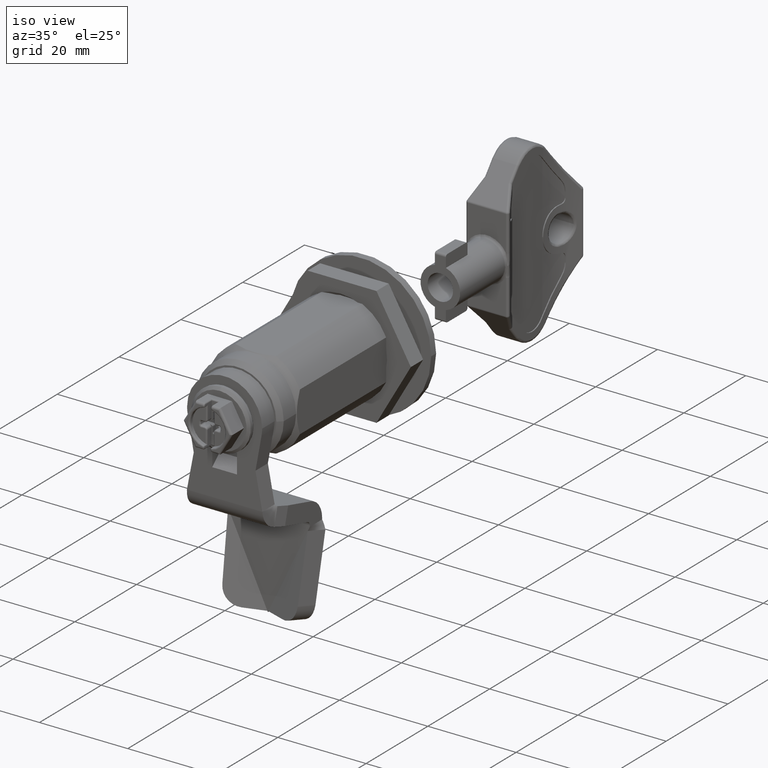
[diagram: clean part render]
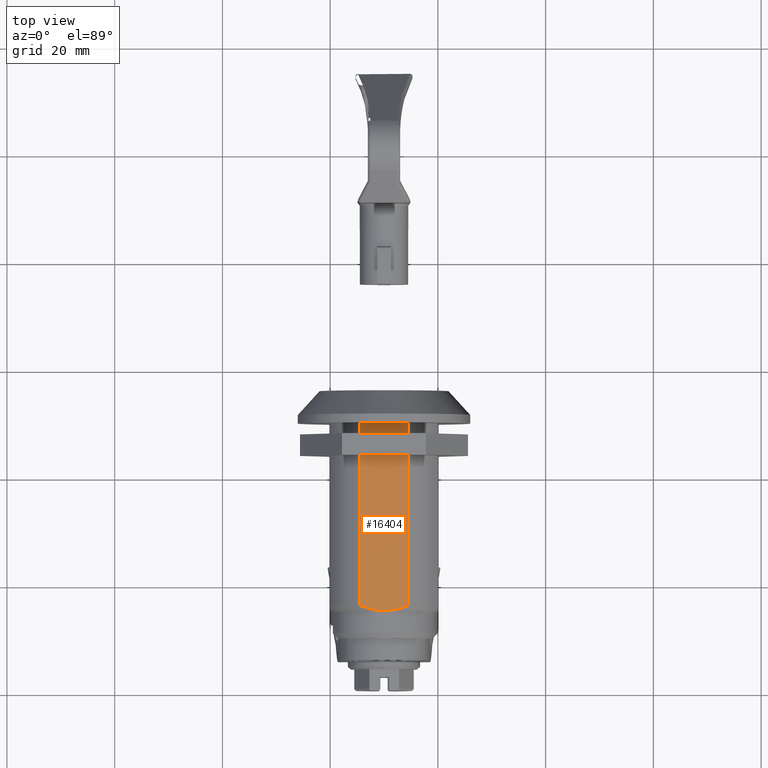
[diagram: tour spotlight — one face highlighted and labeled with its STEP entity id]
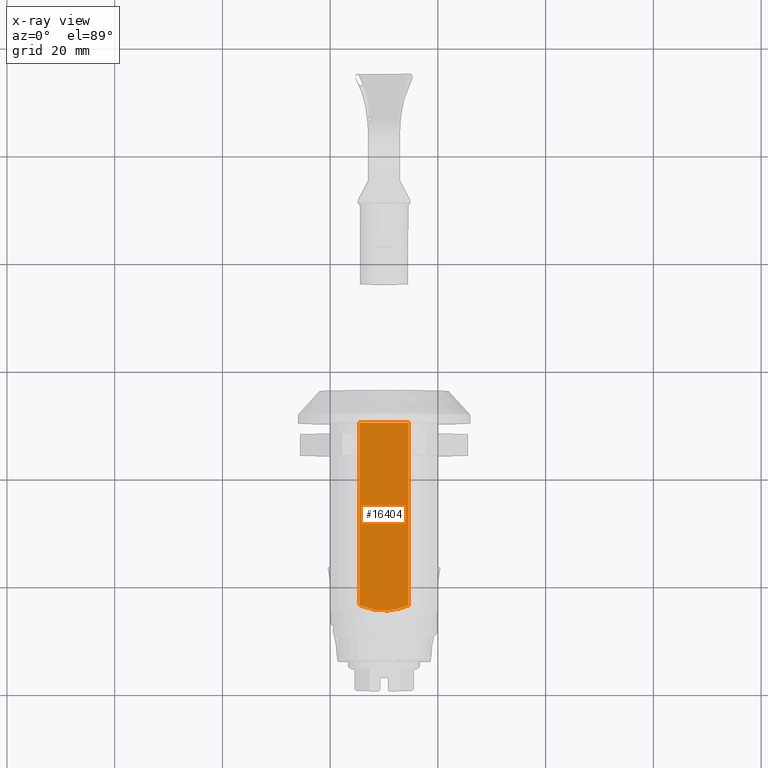
[diagram: x-ray of the same camera — body ghosted, this tour face saturated]
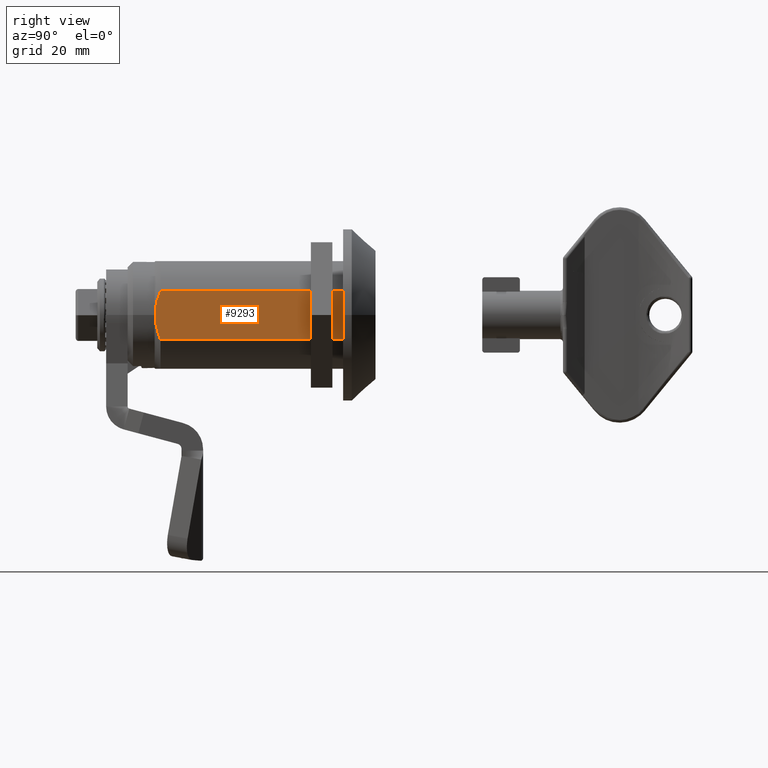
[diagram: tour spotlight — one face highlighted and labeled with its STEP entity id]
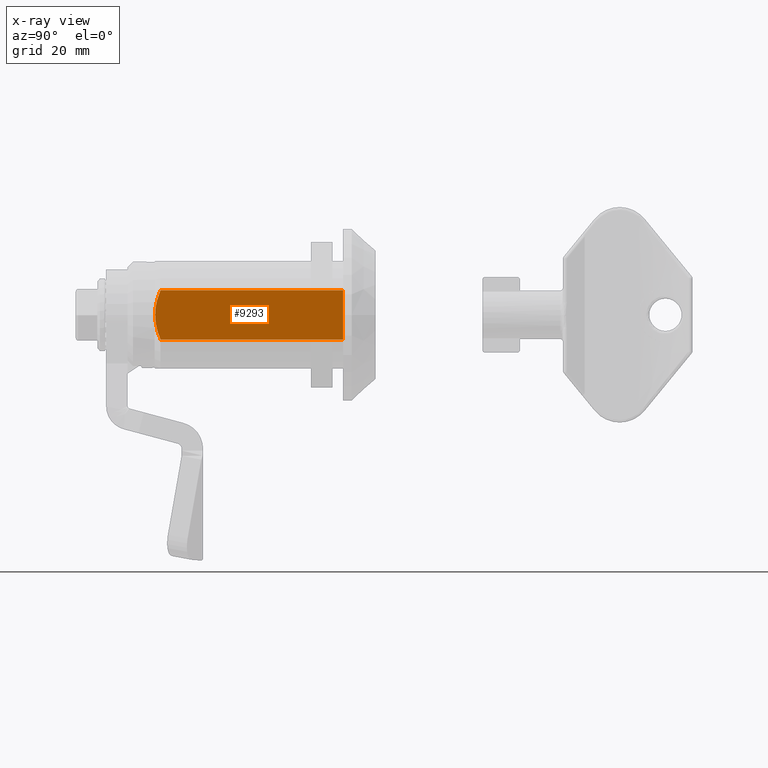
[diagram: x-ray of the same camera — body ghosted, this tour face saturated]
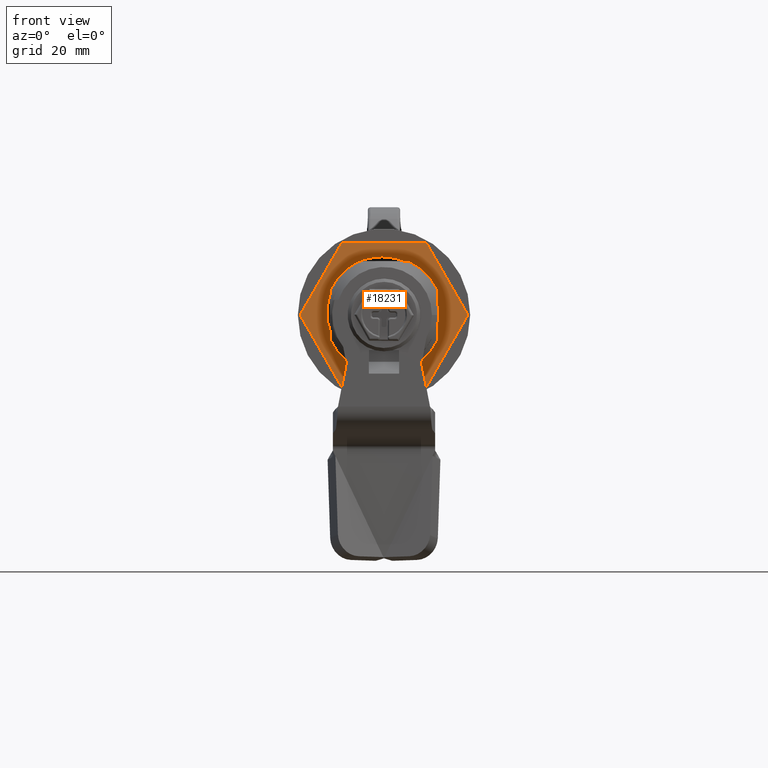
[diagram: tour spotlight — one face highlighted and labeled with its STEP entity id]
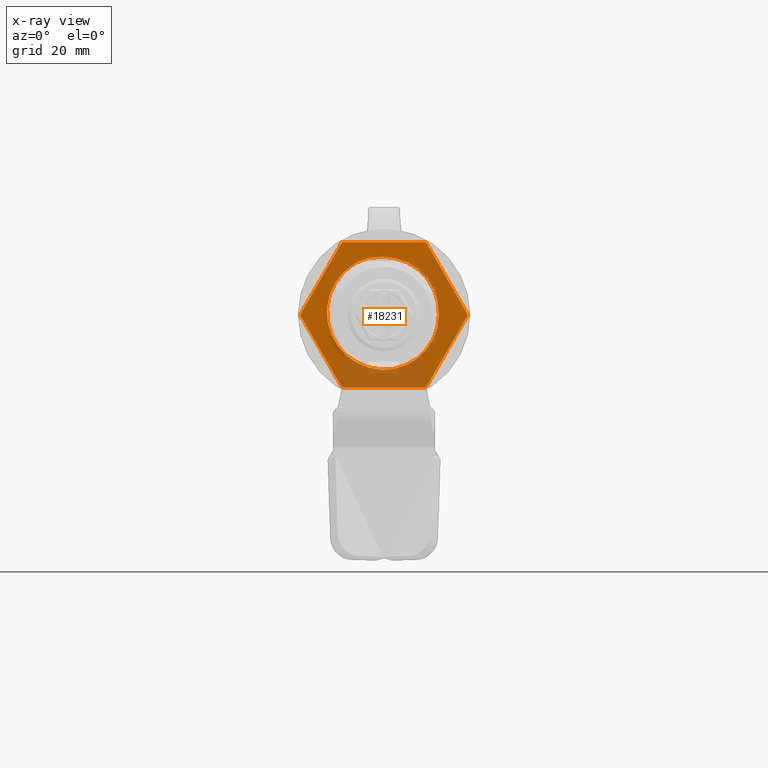
[diagram: x-ray of the same camera — body ghosted, this tour face saturated]
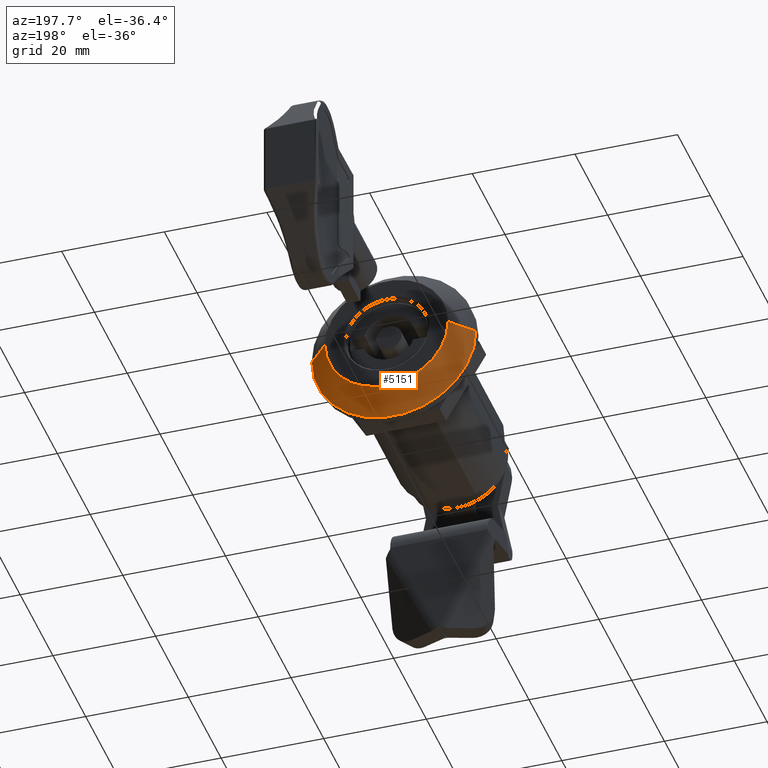
[diagram: tour spotlight — one face highlighted and labeled with its STEP entity id]
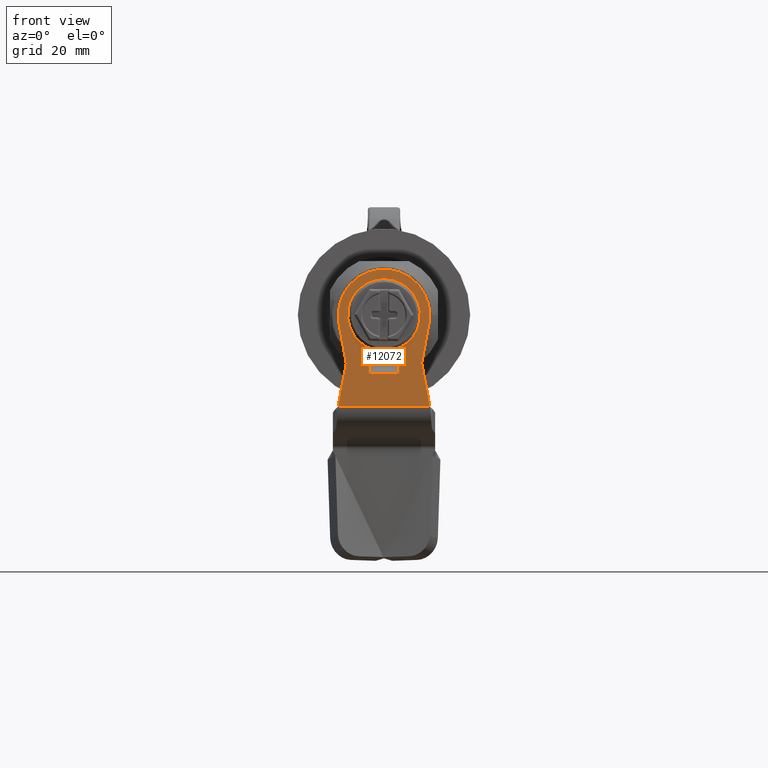
[diagram: tour spotlight — one face highlighted and labeled with its STEP entity id]
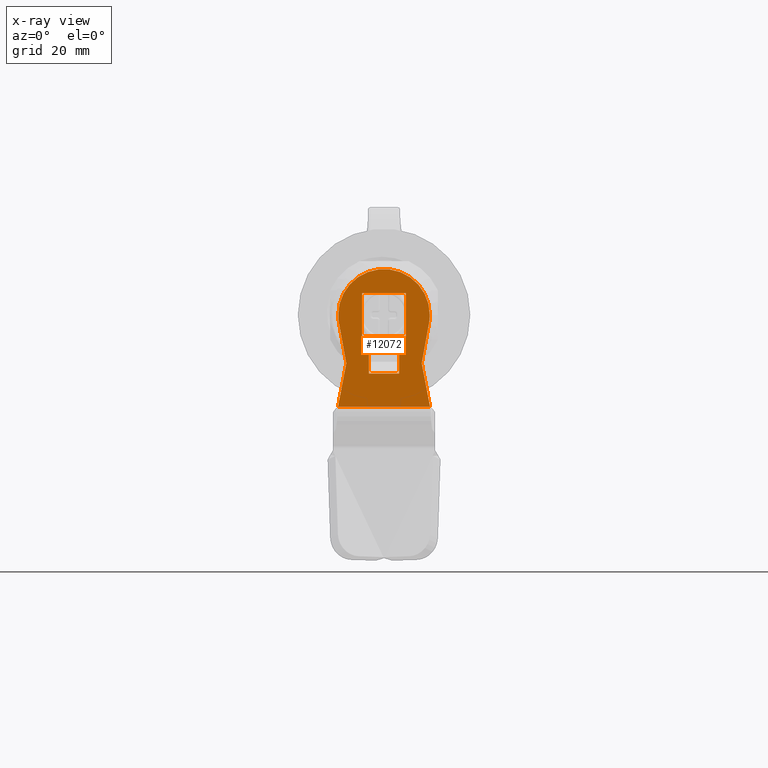
[diagram: x-ray of the same camera — body ghosted, this tour face saturated]
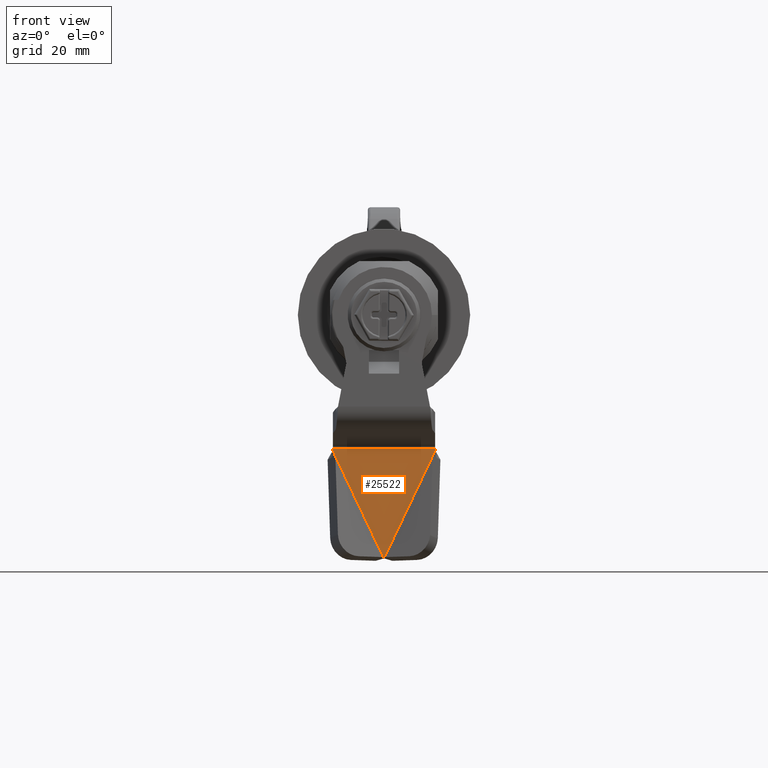
[diagram: tour spotlight — one face highlighted and labeled with its STEP entity id]
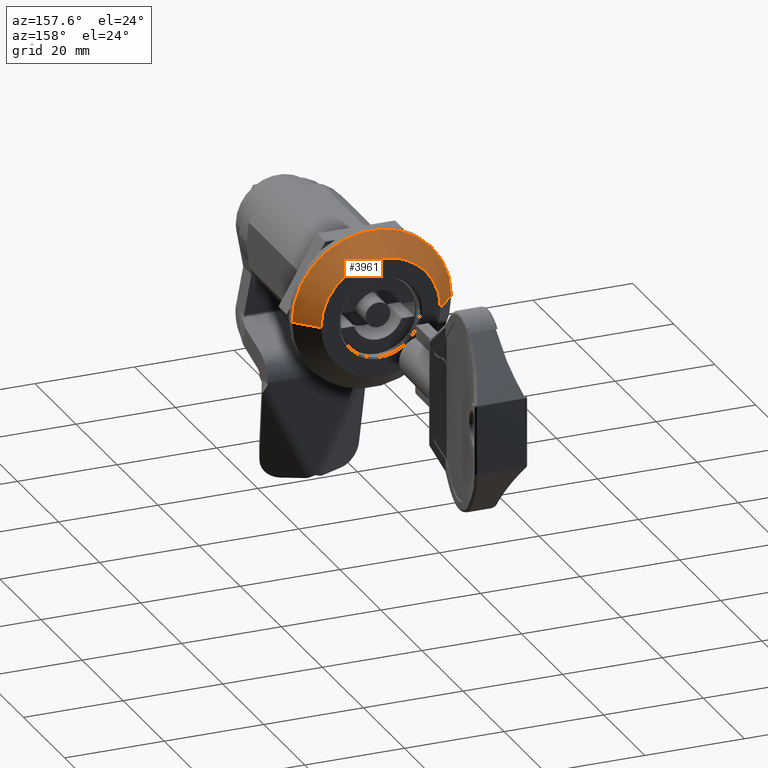
[diagram: tour spotlight — one face highlighted and labeled with its STEP entity id]
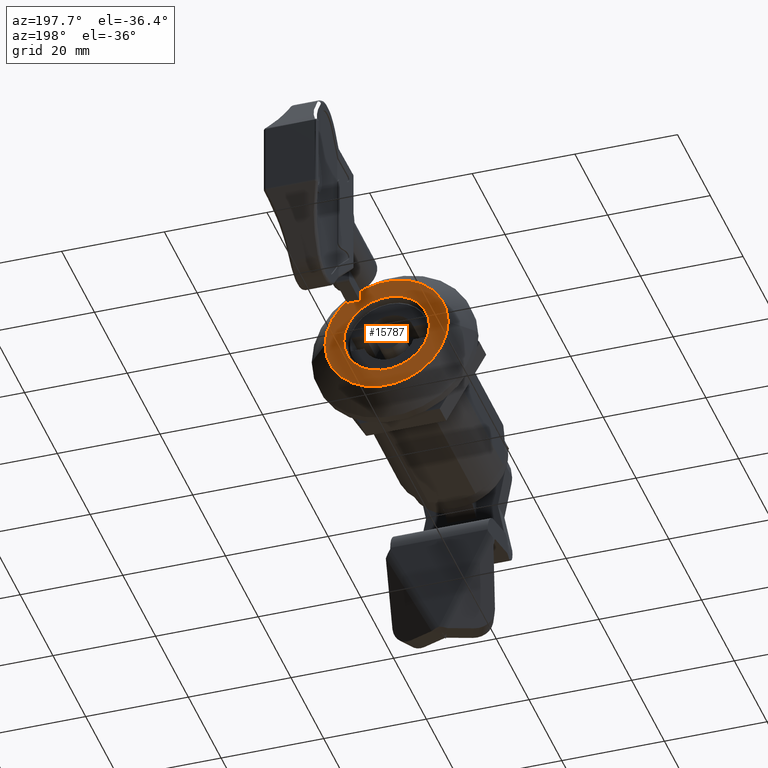
[diagram: tour spotlight — one face highlighted and labeled with its STEP entity id]
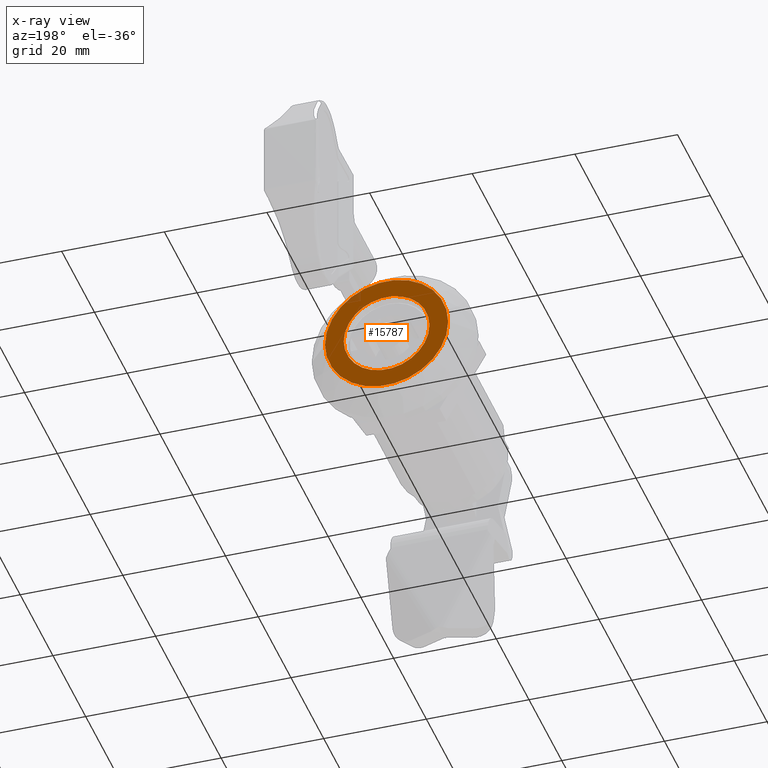
[diagram: x-ray of the same camera — body ghosted, this tour face saturated]
A machine part: a face-by-face anatomy tour. The part has 680 B-rep faces; the first image is the clean iso view, then the 8 largest visible faces are spotlighted one at a time (largest first), each with its STEP entity span.

Face 1 — top view, entity #16404. An x-ray twin of the same camera follows (body ghosted, this face saturated) — the face is partly hidden behind the body. In plain terms, the highlighted planar face has unit normal (0, 0, -1).
Definition (entity closure, byte-faithful):
#30 = VERTEX_POINT ( 'NONE', #25340 ) ;
#688 = FACE_OUTER_BOUND ( 'NONE', #12647, .T. ) ;
#827 = EDGE_CURVE ( 'NONE', #30, #8449, #5458, .T. ) ;
#1322 = LINE ( 'NONE', #1598, #19556 ) ;
#1498 = CARTESIAN_POINT ( 'NONE',  ( 5.411257029336197455, 15.75000000000031974, 11.49999999999961453 ) ) ;
#1598 = CARTESIAN_POINT ( 'NONE',  ( 26.32727434131166433, 49.64999999999997726, 11.50000000000001776 ) ) ;
#1946 = CARTESIAN_POINT ( 'NONE',  ( 5.411257029336986157, 49.64999999999998437, 11.49999999999962164 ) ) ;
#3397 = CARTESIAN_POINT ( 'NONE',  ( 9.596332438046021096, 14.75005604864712261, 11.50000000000000533 ) ) ;
#5031 = CARTESIAN_POINT ( 'NONE',  ( 8.416022537950578197, 14.86627216777498894, 11.50000000000000533 ) ) ;
#5458 = LINE ( 'NONE', #11215, #26127 ) ;
#7216 = VECTOR ( 'NONE', #16180, 1000.000000000000000 ) ;
#7418 = VERTEX_POINT ( 'NONE', #1498 ) ;
#8449 = VERTEX_POINT ( 'NONE', #21037 ) ;
#9209 = ORIENTED_EDGE ( 'NONE', *, *, #19161, .T. ) ;
#9473 = DIRECTION ( 'NONE',  ( 3.317293887944518980E-16, 1.000000000000000000, 1.941967155733531827E-16 ) ) ;
#10184 = ORIENTED_EDGE ( 'NONE', *, *, #14967, .F. ) ;
#10654 = CARTESIAN_POINT ( 'NONE',  ( 5.411257029337652291, 49.64999999999998437, 11.50000000000001066 ) ) ;
#10777 = DIRECTION ( 'NONE',  ( 3.317293887944522431E-16, 1.941967155733530841E-16, -1.000000000000000000 ) ) ;
#11215 = CARTESIAN_POINT ( 'NONE',  ( 14.57640841924923159, 32.69999999999998153, 11.50000000000012079 ) ) ;
#11576 = CARTESIAN_POINT ( 'NONE',  ( 14.57640841924933817, 15.74999999999999645, 11.50000000000006217 ) ) ;
#11955 = DIRECTION ( 'NONE',  ( 1.000000000000000000, -3.317293887944521445E-16, 3.317293887944521938E-16 ) ) ;
#11999 = CARTESIAN_POINT ( 'NONE',  ( 5.411257029336203672, 32.69999999999998863, 11.49999999999925748 ) ) ;
#12101 = VERTEX_POINT ( 'NONE', #1946 ) ;
#12647 = EDGE_LOOP ( 'NONE', ( #10184, #21819, #9209, #17395 ) ) ;
#14175 = EDGE_CURVE ( 'NONE', #12101, #7418, #20745, .T. ) ;
#14967 = EDGE_CURVE ( 'NONE', #12101, #8449, #1322, .T. ) ;
#15230 = CARTESIAN_POINT ( 'NONE',  ( 6.142795663510057125, 15.44524262137450954, 11.50000000000000533 ) ) ;
#15757 = CARTESIAN_POINT ( 'NONE',  ( 10.78459568391284762, 14.74988820199443573, 11.50000000000000888 ) ) ;
#16180 = DIRECTION ( 'NONE',  ( -3.317293887944518980E-16, -1.000000000000000000, -1.941967155733531827E-16 ) ) ;
#16404 = ADVANCED_FACE ( 'NONE', ( #688 ), #16834, .F. ) ;
#16814 = B_SPLINE_CURVE_WITH_KNOTS ( 'NONE', 3,
 ( #17242, #15230, #25465, #23709, #5031, #21829, #3397, #15757, #21691, #19534, #17639, #11576 ),
 .UNSPECIFIED., .F., .F.,
 ( 4, 2, 2, 2, 2, 4 ),
 ( 3.198672041575564518E-17, 0.002345369922716773574, 0.003518054884075140845, 0.004690739845433508984, 0.007036109768150248731, 0.009381479690866988477 ),
 .UNSPECIFIED. ) ;
#16834 = PLANE ( 'NONE',  #22226 ) ;
#17242 = CARTESIAN_POINT ( 'NONE',  ( 5.411257029336197455, 15.75000000000031974, 11.49999999999961453 ) ) ;
#17395 = ORIENTED_EDGE ( 'NONE', *, *, #827, .T. ) ;
#17639 = CARTESIAN_POINT ( 'NONE',  ( 13.84375698478219618, 15.44477903123040541, 11.50000000000000888 ) ) ;
#18864 = DIRECTION ( 'NONE',  ( 1.000000000000000000, -3.317293887944521445E-16, 3.317293887944521938E-16 ) ) ;
#19161 = EDGE_CURVE ( 'NONE', #7418, #30, #16814, .T. ) ;
#19534 = CARTESIAN_POINT ( 'NONE',  ( 13.08902409202629613, 15.19158949546273973, 11.50000000000000533 ) ) ;
#19556 = VECTOR ( 'NONE', #11955, 1000.000000000000000 ) ;
#20745 = LINE ( 'NONE', #11999, #7216 ) ;
#21037 = CARTESIAN_POINT ( 'NONE',  ( 14.57640841924934882, 49.64999999999998437, 11.50000000000006928 ) ) ;
#21691 = CARTESIAN_POINT ( 'NONE',  ( 11.56128453854493365, 14.84472569111559004, 11.50000000000000711 ) ) ;
#21819 = ORIENTED_EDGE ( 'NONE', *, *, #14175, .T. ) ;
#21829 = CARTESIAN_POINT ( 'NONE',  ( 9.197415224299318126, 14.77415873890012321, 11.50000000000000711 ) ) ;
#22226 = AXIS2_PLACEMENT_3D ( 'NONE', #10654, #10777, #18864 ) ;
#23709 = CARTESIAN_POINT ( 'NONE',  ( 8.030445664861122879, 14.93416510799540475, 11.50000000000000711 ) ) ;
#25340 = CARTESIAN_POINT ( 'NONE',  ( 14.57640841924933817, 15.74999999999999645, 11.50000000000006217 ) ) ;
#25465 = CARTESIAN_POINT ( 'NONE',  ( 6.887146564742295141, 15.19513378090562483, 11.50000000000000533 ) ) ;
#26127 = VECTOR ( 'NONE', #9473, 1000.000000000000000 ) ;

Face 2 — right view, entity #9293. An x-ray twin of the same camera follows (body ghosted, this face saturated) — the face is partly hidden behind the body. In plain terms, the highlighted planar face has unit normal (-1, 0, -0).
Definition (entity closure, byte-faithful):
#326 = B_SPLINE_CURVE_WITH_KNOTS ( 'NONE', 3,
 ( #16425, #6617, #18852, #18710, #12515, #415 ),
 .UNSPECIFIED., .F., .F.,
 ( 4, 2, 4 ),
 ( 0.004692133880566533126, 0.007036806785715787188, 0.009381479690865040383 ),
 .UNSPECIFIED. ) ;
#415 = CARTESIAN_POINT ( 'NONE',  ( 19.99383272429444602, 15.75000000000000711, -3.082575694954210910 ) ) ;
#2371 = VERTEX_POINT ( 'NONE', #21335 ) ;
#2493 = DIRECTION ( 'NONE',  ( 3.317293887944518487E-16, 1.941967155733530841E-16, -1.000000000000000000 ) ) ;
#2936 = CARTESIAN_POINT ( 'NONE',  ( 19.99383272429366798, 14.74999999999976552, 1.499999999999999556 ) ) ;
#3318 = EDGE_CURVE ( 'NONE', #5712, #15178, #14601, .T. ) ;
#3338 = CARTESIAN_POINT ( 'NONE',  ( 19.99383272429366798, 14.74999999999976552, 1.499999999999999556 ) ) ;
#3644 = ORIENTED_EDGE ( 'NONE', *, *, #17556, .F. ) ;
#3912 = DIRECTION ( 'NONE',  ( 3.317293887944518980E-16, 1.000000000000000000, 1.941967155733531827E-16 ) ) ;
#4924 = CARTESIAN_POINT ( 'NONE',  ( 19.99383272429366798, 15.75000000000019718, 6.082575694956375401 ) ) ;
#5712 = VERTEX_POINT ( 'NONE', #19033 ) ;
#6433 = EDGE_CURVE ( 'NONE', #15178, #11989, #326, .T. ) ;
#6617 = CARTESIAN_POINT ( 'NONE',  ( 19.99383272429366798, 14.74999999999976552, 0.7080781739758890136 ) ) ;
#8029 = VECTOR ( 'NONE', #16385, 1000.000000000000000 ) ;
#8075 = LINE ( 'NONE', #18028, #15821 ) ;
#8432 = DIRECTION ( 'NONE',  ( -1.000000000000000000, 3.317293887944521445E-16, -3.317293887944517994E-16 ) ) ;
#8824 = FACE_OUTER_BOUND ( 'NONE', #13159, .T. ) ;
#8894 = LINE ( 'NONE', #17094, #8029 ) ;
#9177 = ORIENTED_EDGE ( 'NONE', *, *, #3318, .T. ) ;
#9293 = ADVANCED_FACE ( 'NONE', ( #8824 ), #19176, .F. ) ;
#9541 = VERTEX_POINT ( 'NONE', #18488 ) ;
#11343 = EDGE_CURVE ( 'NONE', #11989, #9541, #8075, .T. ) ;
#11617 = CARTESIAN_POINT ( 'NONE',  ( 19.99383272429444602, 15.75000000000000711, -3.082575694954210910 ) ) ;
#11989 = VERTEX_POINT ( 'NONE', #11617 ) ;
#12515 = CARTESIAN_POINT ( 'NONE',  ( 19.99383272429366798, 15.44486973947006980, -2.350141996256016164 ) ) ;
#13099 = CARTESIAN_POINT ( 'NONE',  ( 19.99383272429366798, 15.44515205090849896, 5.350819655727436341 ) ) ;
#13159 = EDGE_LOOP ( 'NONE', ( #3644, #21442, #9177, #16497, #20392 ) ) ;
#14491 = VECTOR ( 'NONE', #2493, 1000.000000000000000 ) ;
#14601 = B_SPLINE_CURVE_WITH_KNOTS ( 'NONE', 3,
 ( #4924, #13099, #21319, #19478, #25936, #23917, #17587, #3338 ),
 .UNSPECIFIED., .F., .F.,
 ( 4, 2, 2, 4 ),
 ( 4.544346460740636282E-16, 0.002346066940283493378, 0.003519100410425012818, 0.004692133880566533126 ),
 .UNSPECIFIED. ) ;
#15131 = CARTESIAN_POINT ( 'NONE',  ( 19.99383272429367508, 49.64999999999997726, 6.082575694956021017 ) ) ;
#15178 = VERTEX_POINT ( 'NONE', #2936 ) ;
#15821 = VECTOR ( 'NONE', #3912, 1000.000000000000000 ) ;
#16385 = DIRECTION ( 'NONE',  ( 3.317293887944518980E-16, 1.000000000000000000, 1.941967155733531827E-16 ) ) ;
#16425 = CARTESIAN_POINT ( 'NONE',  ( 19.99383272429366798, 14.74999999999976552, 1.499999999999999556 ) ) ;
#16469 = EDGE_CURVE ( 'NONE', #5712, #2371, #8894, .T. ) ;
#16497 = ORIENTED_EDGE ( 'NONE', *, *, #6433, .T. ) ;
#17094 = CARTESIAN_POINT ( 'NONE',  ( 19.99383272429366798, 32.02245724544727778, 6.082575694955989931 ) ) ;
#17556 = EDGE_CURVE ( 'NONE', #2371, #9541, #24977, .T. ) ;
#17587 = CARTESIAN_POINT ( 'NONE',  ( 19.99383272429366798, 14.74999999999977085, 1.896196333237679887 ) ) ;
#18028 = CARTESIAN_POINT ( 'NONE',  ( 19.99383272429512104, 32.69999999999996732, -3.082575694952625511 ) ) ;
#18488 = CARTESIAN_POINT ( 'NONE',  ( 19.99383272429446023, 49.64999999999998437, -3.082575694954231782 ) ) ;
#18710 = CARTESIAN_POINT ( 'NONE',  ( 19.99383272429366087, 15.19173892107217760, -1.595637836240288543 ) ) ;
#18793 = AXIS2_PLACEMENT_3D ( 'NONE', #15131, #8432, #23350 ) ;
#18852 = CARTESIAN_POINT ( 'NONE',  ( 19.99383272429366798, 14.84488555888309413, -0.06836742005086805796 ) ) ;
#19033 = CARTESIAN_POINT ( 'NONE',  ( 19.99383272429366798, 15.75000000000019718, 6.082575694956375401 ) ) ;
#19176 = PLANE ( 'NONE',  #18793 ) ;
#19478 = CARTESIAN_POINT ( 'NONE',  ( 19.99383272429366798, 14.93400685595281097, 3.462588924308568128 ) ) ;
#20392 = ORIENTED_EDGE ( 'NONE', *, *, #11343, .T. ) ;
#21319 = CARTESIAN_POINT ( 'NONE',  ( 19.99383272429366798, 15.19498500394141871, 4.606243761755941968 ) ) ;
#21335 = CARTESIAN_POINT ( 'NONE',  ( 19.99383272429367508, 49.64999999999997726, 6.082575694955938417 ) ) ;
#21442 = ORIENTED_EDGE ( 'NONE', *, *, #16469, .F. ) ;
#23350 = DIRECTION ( 'NONE',  ( 3.317293887944518487E-16, 1.941967155733530841E-16, -1.000000000000000000 ) ) ;
#23917 = CARTESIAN_POINT ( 'NONE',  ( 19.99383272429367153, 14.77406083346411236, 2.295247257953467734 ) ) ;
#24977 = LINE ( 'NONE', #25364, #14491 ) ;
#25364 = CARTESIAN_POINT ( 'NONE',  ( 19.99383272429368219, 49.64999999999995595, -14.81999999999999318 ) ) ;
#25936 = CARTESIAN_POINT ( 'NONE',  ( 19.99383272429366798, 14.86612380159481717, 3.076890413911520739 ) ) ;

Face 3 — front view, entity #18231. An x-ray twin of the same camera follows (body ghosted, this face saturated) — the face is partly hidden behind the body. In plain terms, the highlighted planar face has unit normal (0, 1, 0).
Definition (entity closure, byte-faithful):
#86 = CARTESIAN_POINT ( 'NONE',  ( 3.720910972056909571, 43.64999999999997726, 10.50802915058001119 ) ) ;
#225 = CARTESIAN_POINT ( 'NONE',  ( 4.899832724295404951, 43.64999999999997726, -7.323066813756941684 ) ) ;
#363 = CARTESIAN_POINT ( 'NONE',  ( -0.6133389555849501074, 43.64999999999999147, 2.173255433727881325 ) ) ;
#431 = CARTESIAN_POINT ( 'NONE',  ( 19.80138602491301825, 43.64999999999995595, 4.715313271817056950 ) ) ;
#516 = DIRECTION ( 'NONE',  ( 0.5000000000000023315, -3.340439834152515323E-16, 0.8660254037844372643 ) ) ;
#672 = CARTESIAN_POINT ( 'NONE',  ( 4.493847760555285120, 43.64999999999918856, 11.02627705398181845 ) ) ;
#736 = LINE ( 'NONE', #21453, #11869 ) ;
#1017 = VERTEX_POINT ( 'NONE', #16736 ) ;
#1094 = B_SPLINE_CURVE_WITH_KNOTS ( 'NONE', 3,
 ( #20884, #10379, #18464, #16442, #6103, #431, #16715, #4488, #2451, #16579, #24944, #2315, #14560, #10657, #22786, #4351, #4221, #12531, #18868, #8643, #12403, #20617, #20486, #16838, #25071, #6633, #23042, #4622, #14282, #10257 ),
 .UNSPECIFIED., .F., .F.,
 ( 4, 2, 2, 2, 2, 2, 2, 2, 2, 2, 2, 2, 2, 2, 4 ),
 ( 1.878821647405994727E-18, 0.001393240002397116810, 0.002786480004794231451, 0.004179720007191345225, 0.005572960009588458566, 0.008359440014382678308, 0.009752680016779792516, 0.01114592001917690846, 0.01253916002157402267, 0.01393240002397113687, 0.01532564002636825282, 0.01671888002876537049, 0.01950536003355959891, 0.02089860003595671659, 0.02229184003835383079 ),
 .UNSPECIFIED. ) ;
#1314 = VERTEX_POINT ( 'NONE', #6362 ) ;
#1351 = CARTESIAN_POINT ( 'NONE',  ( 25.58228999241364576, 43.64999999999997726, -12.00000000000000533 ) ) ;
#1604 = CARTESIAN_POINT ( 'NONE',  ( 2.199604090233679088, 43.64999999999998437, 15.00000000000001243 ) ) ;
#1757 = ORIENTED_EDGE ( 'NONE', *, *, #20814, .F. ) ;
#1846 = CARTESIAN_POINT ( 'NONE',  ( 3.001501378406297160, 43.64999999999997016, 9.919030476129087504 ) ) ;
#1900 = DIRECTION ( 'NONE',  ( 3.317293887944520952E-16, 1.000000000000000000, 1.941967155733531827E-16 ) ) ;
#1971 = CARTESIAN_POINT ( 'NONE',  ( 1.164724676826932592, 43.64999999999997726, 7.850828539928349059 ) ) ;
#2186 = VECTOR ( 'NONE', #7607, 1000.000000000000114 ) ;
#2315 = CARTESIAN_POINT ( 'NONE',  ( 16.95361993408336687, 43.64999999999998437, 9.398130330029806245 ) ) ;
#2400 = EDGE_CURVE ( 'NONE', #16958, #22297, #23045, .T. ) ;
#2451 = CARTESIAN_POINT ( 'NONE',  ( 19.13737520752998478, 43.64999999999994884, 6.435034984194351715 ) ) ;
#2937 = CARTESIAN_POINT ( 'NONE',  ( 17.78806135835365865, 43.64999999999997726, -11.99999999999998046 ) ) ;
#2986 = EDGE_CURVE ( 'NONE', #1314, #7311, #23392, .T. ) ;
#3528 = ORIENTED_EDGE ( 'NONE', *, *, #2986, .F. ) ;
#3694 = AXIS2_PLACEMENT_3D ( 'NONE', #25380, #4685, #12730 ) ;
#3966 = EDGE_CURVE ( 'NONE', #22297, #17148, #1094, .T. ) ;
#4221 = CARTESIAN_POINT ( 'NONE',  ( 14.30307244256401233, 43.64999999999997016, 11.23449318292817622 ) ) ;
#4351 = CARTESIAN_POINT ( 'NONE',  ( 14.71508017965603266, 43.64999999999998437, 11.02229933294651154 ) ) ;
#4488 = CARTESIAN_POINT ( 'NONE',  ( 19.33307286727036356, 43.64999999999998437, 6.013600974815598299 ) ) ;
#4579 = CARTESIAN_POINT ( 'NONE',  ( 2.199604090233679088, 43.64999999999998437, 15.00000000000001243 ) ) ;
#4622 = CARTESIAN_POINT ( 'NONE',  ( 5.328108673120907746, 43.64999999999999858, 11.43597171178119254 ) ) ;
#4685 = DIRECTION ( 'NONE',  ( -3.317293887944518980E-16, -1.000000000000000000, -1.941967155733531827E-16 ) ) ;
#4911 = EDGE_CURVE ( 'NONE', #17148, #16958, #15528, .T. ) ;
#5111 = CARTESIAN_POINT ( 'NONE',  ( 9.993832724293673309, 43.64999999999997726, -11.99999999999998224 ) ) ;
#5191 = ORIENTED_EDGE ( 'NONE', *, *, #15909, .F. ) ;
#5789 = EDGE_CURVE ( 'NONE', #13800, #1017, #736, .T. ) ;
#6103 = CARTESIAN_POINT ( 'NONE',  ( 20.01590400141999737, 43.64999999999997016, 3.817269469232063894 ) ) ;
#6162 = CARTESIAN_POINT ( 'NONE',  ( -0.4248946096379289661, 43.64999999999998437, -0.1226338748444904259 ) ) ;
#6240 = ORIENTED_EDGE ( 'NONE', *, *, #2400, .F. ) ;
#6297 = CARTESIAN_POINT ( 'NONE',  ( -0.5981897328766242472, 43.64999999999997016, 1.253929665754853762 ) ) ;
#6362 = CARTESIAN_POINT ( 'NONE',  ( 17.78806135835365865, 43.64999999999997726, -11.99999999999998046 ) ) ;
#6633 = CARTESIAN_POINT ( 'NONE',  ( 6.639604384004587523, 43.64999999999999858, 11.90039152263075373 ) ) ;
#7311 = VERTEX_POINT ( 'NONE', #25466 ) ;
#7503 = VECTOR ( 'NONE', #11258, 1000.000000000000000 ) ;
#7607 = DIRECTION ( 'NONE',  ( -0.5000000000000029976, -2.314594620797637154E-18, 0.8660254037844369313 ) ) ;
#8035 = CARTESIAN_POINT ( 'NONE',  ( 1.968247744556062440, 43.64999999999999147, -5.066418141725629098 ) ) ;
#8165 = CARTESIAN_POINT ( 'NONE',  ( 0.6668326923381018290, 43.64999999999999147, -3.156555896244797044 ) ) ;
#8435 = CARTESIAN_POINT ( 'NONE',  ( 0.08465816093448058632, 43.64999999999998437, -1.899376427455066407 ) ) ;
#8570 = CARTESIAN_POINT ( 'NONE',  ( -0.3255574775872256965, 43.64999999999998437, -0.5800773284084934645 ) ) ;
#8643 = CARTESIAN_POINT ( 'NONE',  ( 12.12873174601851645, 43.64999999999999147, 12.01465215920317497 ) ) ;
#9323 = ORIENTED_EDGE ( 'NONE', *, *, #25175, .F. ) ;
#9719 = EDGE_LOOP ( 'NONE', ( #15820, #6240, #13783 ) ) ;
#10046 = CARTESIAN_POINT ( 'NONE',  ( 4.092321260769505642, 43.64999999999999147, -6.860726500087458213 ) ) ;
#10257 = CARTESIAN_POINT ( 'NONE',  ( 4.493847760555285120, 43.64999999999918856, 11.02627705398181845 ) ) ;
#10310 = CARTESIAN_POINT ( 'NONE',  ( -0.5911269518283467361, 43.64999999999999147, 2.633398062950556451 ) ) ;
#10379 = CARTESIAN_POINT ( 'NONE',  ( 20.19959836318480484, 43.65000000000001990, 1.966195854397474685 ) ) ;
#10610 = LINE ( 'NONE', #4579, #19854 ) ;
#10657 = CARTESIAN_POINT ( 'NONE',  ( 15.88309430704075709, 43.64999999999997726, 10.28721098551345037 ) ) ;
#11258 = DIRECTION ( 'NONE',  ( -1.000000000000000000, 3.317293887944521445E-16, -3.317293887944521938E-16 ) ) ;
#11787 = CARTESIAN_POINT ( 'NONE',  ( 4.493847760555285120, 43.64999999999918856, 11.02627705398181845 ) ) ;
#11869 = VECTOR ( 'NONE', #17541, 1000.000000000000000 ) ;
#12320 = CARTESIAN_POINT ( 'NONE',  ( 0.4530566333735601137, 43.64999999999997726, -2.743405178057511495 ) ) ;
#12403 = CARTESIAN_POINT ( 'NONE',  ( 11.67919113678897958, 43.64999999999997726, 12.11290976428983335 ) ) ;
#12531 = CARTESIAN_POINT ( 'NONE',  ( 13.44826068384150020, 43.64999999999996305, 11.60532343340069694 ) ) ;
#12593 = CARTESIAN_POINT ( 'NONE',  ( 2.659179453762902323, 43.64999999999998437, 9.600162848187148157 ) ) ;
#12686 = ORIENTED_EDGE ( 'NONE', *, *, #5789, .F. ) ;
#12730 = DIRECTION ( 'NONE',  ( 1.000000000000000000, 0.0000000000000000000, 3.405424962655687635E-16 ) ) ;
#13783 = ORIENTED_EDGE ( 'NONE', *, *, #4911, .F. ) ;
#13800 = VERTEX_POINT ( 'NONE', #1604 ) ;
#14208 = CARTESIAN_POINT ( 'NONE',  ( 4.487078451418478053, 43.64999999999997726, -7.105255754859719275 ) ) ;
#14282 = CARTESIAN_POINT ( 'NONE',  ( 4.905584814522399029, 43.64999999999998437, 11.24504046455225925 ) ) ;
#14344 = CARTESIAN_POINT ( 'NONE',  ( 3.337824646158374264, 43.64999999999999147, -6.319681144121379823 ) ) ;
#14475 = CARTESIAN_POINT ( 'NONE',  ( 1.707772279458057652, 43.64999999999997726, 8.593519225183316124 ) ) ;
#14560 = CARTESIAN_POINT ( 'NONE',  ( 16.60647329202990363, 43.64999999999997726, 9.713095922824752648 ) ) ;
#15313 = VECTOR ( 'NONE', #20119, 1000.000000000000114 ) ;
#15528 = B_SPLINE_CURVE_WITH_KNOTS ( 'NONE', 3,
 ( #11787, #20006, #86, #1846, #12593, #14475, #1971, #22433, #16638, #22306, #20809, #10310, #363, #6297, #24462, #6162, #8570, #22837, #8435, #12320, #8165, #18392, #8035, #24327, #14344, #10046, #14208, #225 ),
 .UNSPECIFIED., .F., .F.,
 ( 4, 2, 2, 2, 2, 2, 2, 2, 2, 2, 2, 2, 2, 4 ),
 ( 0.0000000000000000000, 0.001393625910493088592, 0.002787251820986177183, 0.005574503641972355233, 0.008361755462958534585, 0.009755381373451620791, 0.01114900728394470873, 0.01254263319443779667, 0.01393625910493088635, 0.01532988501542397429, 0.01672351092591706223, 0.01951076274690324158, 0.02090438865739632779, 0.02229801456788941746 ),
 .UNSPECIFIED. ) ;
#15588 = AXIS2_PLACEMENT_3D ( 'NONE', #1351, #1900, #26525 ) ;
#15820 = ORIENTED_EDGE ( 'NONE', *, *, #3966, .F. ) ;
#15886 = FACE_BOUND ( 'NONE', #9719, .T. ) ;
#15909 = EDGE_CURVE ( 'NONE', #1017, #21089, #20517, .T. ) ;
#16442 = CARTESIAN_POINT ( 'NONE',  ( 20.09369349921287551, 43.65000000000000568, 3.355644941421465521 ) ) ;
#16560 = CARTESIAN_POINT ( 'NONE',  ( 20.18182386527090344, 43.64999999999946567, 1.499987914923371690 ) ) ;
#16579 = CARTESIAN_POINT ( 'NONE',  ( 18.46479664873510274, 43.64999999999995595, 7.658807197170205860 ) ) ;
#16638 = CARTESIAN_POINT ( 'NONE',  ( -0.06761667193503040352, 43.64999999999999147, 5.357832488051903042 ) ) ;
#16715 = CARTESIAN_POINT ( 'NONE',  ( 19.66460774688395929, 43.64999999999999147, 5.154508986729931408 ) ) ;
#16736 = CARTESIAN_POINT ( 'NONE',  ( 17.78806135835364799, 43.64999999999997726, 15.00000000000001421 ) ) ;
#16838 = CARTESIAN_POINT ( 'NONE',  ( 8.911389929858378522, 43.64999999999997016, 12.32122892602773589 ) ) ;
#16958 = VERTEX_POINT ( 'NONE', #20067 ) ;
#17148 = VERTEX_POINT ( 'NONE', #672 ) ;
#17541 = DIRECTION ( 'NONE',  ( 1.000000000000000000, -3.317293887944521445E-16, 3.317293887944521938E-16 ) ) ;
#18231 = ADVANCED_FACE ( 'NONE', ( #15886, #25989 ), #22499, .F. ) ;
#18392 = CARTESIAN_POINT ( 'NONE',  ( 1.390522996191774885, 43.64999999999999858, -4.350589937295593401 ) ) ;
#18464 = CARTESIAN_POINT ( 'NONE',  ( 20.18524268393909082, 43.64999999999999858, 2.430552117035083004 ) ) ;
#18512 = ORIENTED_EDGE ( 'NONE', *, *, #19929, .F. ) ;
#18623 = CARTESIAN_POINT ( 'NONE',  ( 25.58228999241363866, 43.64999999999997016, 1.500000000000007105 ) ) ;
#18868 = CARTESIAN_POINT ( 'NONE',  ( 13.01325552001584462, 43.64999999999997726, 11.76081568210896577 ) ) ;
#19340 = DIRECTION ( 'NONE',  ( -0.5000000000000023315, 3.340439834152515323E-16, -0.8660254037844372643 ) ) ;
#19854 = VECTOR ( 'NONE', #516, 1000.000000000000227 ) ;
#19929 = EDGE_CURVE ( 'NONE', #21089, #1314, #21364, .T. ) ;
#20006 = CARTESIAN_POINT ( 'NONE',  ( 4.098393776820728363, 43.64999999999998437, 10.77902954343319664 ) ) ;
#20067 = CARTESIAN_POINT ( 'NONE',  ( 4.899832724295404951, 43.64999999999997726, -7.323066813756941684 ) ) ;
#20119 = DIRECTION ( 'NONE',  ( 0.5000000000000029976, 2.314594620797637154E-18, -0.8660254037844369313 ) ) ;
#20486 = CARTESIAN_POINT ( 'NONE',  ( 10.29832856613847447, 43.64999999999998437, 12.29159724946050858 ) ) ;
#20517 = LINE ( 'NONE', #18623, #15313 ) ;
#20617 = CARTESIAN_POINT ( 'NONE',  ( 10.76538159671969375, 43.64999999999998437, 12.25143086316614216 ) ) ;
#20809 = CARTESIAN_POINT ( 'NONE',  ( -0.4857154901176571893, 43.64999999999999147, 3.554665589455224595 ) ) ;
#20814 = EDGE_CURVE ( 'NONE', #24979, #13800, #10610, .T. ) ;
#20884 = CARTESIAN_POINT ( 'NONE',  ( 20.18182386527090344, 43.64999999999946567, 1.499987914923371690 ) ) ;
#21089 = VERTEX_POINT ( 'NONE', #25847 ) ;
#21364 = LINE ( 'NONE', #2937, #25144 ) ;
#21453 = CARTESIAN_POINT ( 'NONE',  ( 9.993832724293664427, 43.64999999999998437, 15.00000000000001421 ) ) ;
#22233 = EDGE_LOOP ( 'NONE', ( #1757, #9323, #3528, #18512, #5191, #12686 ) ) ;
#22297 = VERTEX_POINT ( 'NONE', #16560 ) ;
#22306 = CARTESIAN_POINT ( 'NONE',  ( -0.4021300250886011285, 43.64999999999998437, 4.015226201169570963 ) ) ;
#22433 = CARTESIAN_POINT ( 'NONE',  ( 0.2680361443780056585, 43.64999999999997726, 6.216795701748491609 ) ) ;
#22499 = PLANE ( 'NONE',  #15588 ) ;
#22786 = CARTESIAN_POINT ( 'NONE',  ( 15.50467397278739945, 43.64999999999997726, 10.54883625391622104 ) ) ;
#22837 = CARTESIAN_POINT ( 'NONE',  ( -0.07098119148317169613, 43.64999999999996305, -1.466679636852166624 ) ) ;
#23042 = CARTESIAN_POINT ( 'NONE',  ( 6.194229034442391146, 43.64999999999999858, 11.76345630152775534 ) ) ;
#23045 = CIRCLE ( 'NONE', #3694, 10.18799999999999883 ) ;
#23392 = LINE ( 'NONE', #5111, #7503 ) ;
#23498 = CARTESIAN_POINT ( 'NONE',  ( -5.594624543826302698, 43.64999999999998437, 1.499999999999885647 ) ) ;
#24164 = LINE ( 'NONE', #26048, #2186 ) ;
#24327 = CARTESIAN_POINT ( 'NONE',  ( 2.976298957580373106, 43.64999999999999147, -6.021074796532001727 ) ) ;
#24462 = CARTESIAN_POINT ( 'NONE',  ( -0.5609177453448470629, 43.64999999999998437, 0.7947450897162231520 ) ) ;
#24944 = CARTESIAN_POINT ( 'NONE',  ( 17.91800542073459113, 43.64999999999997016, 8.398925041626144505 ) ) ;
#24979 = VERTEX_POINT ( 'NONE', #23498 ) ;
#25071 = CARTESIAN_POINT ( 'NONE',  ( 7.996693773728998700, 43.64999999999998437, 12.22360611582733547 ) ) ;
#25144 = VECTOR ( 'NONE', #19340, 1000.000000000000227 ) ;
#25175 = EDGE_CURVE ( 'NONE', #7311, #24979, #24164, .T. ) ;
#25380 = CARTESIAN_POINT ( 'NONE',  ( 9.993832724293667980, 43.64999999999997726, 1.500000000000001998 ) ) ;
#25466 = CARTESIAN_POINT ( 'NONE',  ( 2.199604090233687526, 43.64999999999998437, -11.99999999999998401 ) ) ;
#25847 = CARTESIAN_POINT ( 'NONE',  ( 25.58228999241363866, 43.64999999999997016, 1.500000000000007105 ) ) ;
#25989 = FACE_OUTER_BOUND ( 'NONE', #22233, .T. ) ;
#26048 = CARTESIAN_POINT ( 'NONE',  ( -5.594624543826302698, 43.64999999999998437, 1.499999999999885647 ) ) ;
#26525 = DIRECTION ( 'NONE',  ( -1.000000000000000000, 3.317293887944521445E-16, -3.317293887944521938E-16 ) ) ;

Face 4 — auxiliary view, entity #5151. In plain terms, the highlighted conical surface has half-angle 42.274 deg.
Definition (entity closure, byte-faithful):
#178 = CARTESIAN_POINT ( 'NONE',  ( -2.006167275706327136, 55.64999999999999858, 1.500000000000000444 ) ) ;
#768 = CIRCLE ( 'NONE', #5960, 16.00000000000000000 ) ;
#1538 = DIRECTION ( 'NONE',  ( -1.000000000000000000, 5.782411586589356653E-16, -3.252606517456513302E-16 ) ) ;
#1570 = VERTEX_POINT ( 'NONE', #23166 ) ;
#3482 = AXIS2_PLACEMENT_3D ( 'NONE', #7473, #15544, #23760 ) ;
#3554 = ORIENTED_EDGE ( 'NONE', *, *, #5632, .T. ) ;
#3867 = CARTESIAN_POINT ( 'NONE',  ( 9.993832724293671532, 51.24999999999997868, 1.500000000000003553 ) ) ;
#3963 = VERTEX_POINT ( 'NONE', #12262 ) ;
#5151 = ADVANCED_FACE ( 'NONE', ( #13372 ), #6003, .T. ) ;
#5632 = EDGE_CURVE ( 'NONE', #1570, #3963, #14330, .T. ) ;
#5960 = AXIS2_PLACEMENT_3D ( 'NONE', #3867, #22298, #17983 ) ;
#6003 = CONICAL_SURFACE ( 'NONE', #20597, 12.00000000000000000, 0.7378150601204640502 ) ;
#6091 = VERTEX_POINT ( 'NONE', #178 ) ;
#7255 = DIRECTION ( 'NONE',  ( 0.6726727939963116354, -0.7399400733959444754, -2.927255567654304724E-18 ) ) ;
#7473 = CARTESIAN_POINT ( 'NONE',  ( 9.993832724293673309, 55.64999999999999147, 1.500000000000004441 ) ) ;
#8203 = EDGE_CURVE ( 'NONE', #3963, #8332, #768, .T. ) ;
#8332 = VERTEX_POINT ( 'NONE', #26291 ) ;
#10201 = ORIENTED_EDGE ( 'NONE', *, *, #8203, .T. ) ;
#11892 = CARTESIAN_POINT ( 'NONE',  ( 9.993832724293673309, 55.64999999999999147, 1.500000000000004441 ) ) ;
#12262 = CARTESIAN_POINT ( 'NONE',  ( 25.99383272429367508, 51.24999999999997158, 1.500000000000006883 ) ) ;
#13372 = FACE_OUTER_BOUND ( 'NONE', #13954, .T. ) ;
#13954 = EDGE_LOOP ( 'NONE', ( #21841, #3554, #10201, #24004 ) ) ;
#14063 = CARTESIAN_POINT ( 'NONE',  ( 21.99383272429367153, 55.64999999999998437, 1.500000000000006883 ) ) ;
#14330 = LINE ( 'NONE', #14063, #23923 ) ;
#15544 = DIRECTION ( 'NONE',  ( 3.317293887944518980E-16, 1.000000000000000000, 1.941967155733531827E-16 ) ) ;
#15928 = DIRECTION ( 'NONE',  ( -3.317293887944518980E-16, -1.000000000000000000, -1.941967155733531827E-16 ) ) ;
#16122 = CARTESIAN_POINT ( 'NONE',  ( -2.006167275706327136, 55.64999999999999858, 1.500000000000000444 ) ) ;
#16388 = LINE ( 'NONE', #16122, #23528 ) ;
#17461 = EDGE_CURVE ( 'NONE', #6091, #8332, #16388, .T. ) ;
#17983 = DIRECTION ( 'NONE',  ( -3.252606517456513302E-16, 0.0000000000000000000, 1.000000000000000000 ) ) ;
#20597 = AXIS2_PLACEMENT_3D ( 'NONE', #11892, #15928, #1538 ) ;
#21841 = ORIENTED_EDGE ( 'NONE', *, *, #25235, .F. ) ;
#22298 = DIRECTION ( 'NONE',  ( 3.317293887944518980E-16, 1.000000000000000000, 1.941967155733531827E-16 ) ) ;
#22737 = DIRECTION ( 'NONE',  ( -0.6726727939963120795, -0.7399400733959440313, -3.668392667856512423E-16 ) ) ;
#23166 = CARTESIAN_POINT ( 'NONE',  ( 21.99383272429367508, 55.64999999999998437, 1.500000000000006883 ) ) ;
#23528 = VECTOR ( 'NONE', #22737, 1000.000000000000000 ) ;
#23760 = DIRECTION ( 'NONE',  ( -1.000000000000000000, 5.782411586589356653E-16, -3.252606517456513302E-16 ) ) ;
#23923 = VECTOR ( 'NONE', #7255, 1000.000000000000000 ) ;
#24004 = ORIENTED_EDGE ( 'NONE', *, *, #17461, .F. ) ;
#24994 = CIRCLE ( 'NONE', #3482, 12.00000000000000000 ) ;
#25235 = EDGE_CURVE ( 'NONE', #1570, #6091, #24994, .T. ) ;
#26291 = CARTESIAN_POINT ( 'NONE',  ( -6.006167275706335573, 51.24999999999998579, 1.499999999999998224 ) ) ;

Face 5 — front view, entity #12072. An x-ray twin of the same camera follows (body ghosted, this face saturated) — the face is partly hidden behind the body. In plain terms, the highlighted planar face has unit normal (-0, -1, -0).
Definition (entity closure, byte-faithful):
#339 = AXIS2_PLACEMENT_3D ( 'NONE', #13085, #18894, #6659 ) ;
#852 = EDGE_CURVE ( 'NONE', #22997, #4790, #5091, .T. ) ;
#883 = ORIENTED_EDGE ( 'NONE', *, *, #13513, .T. ) ;
#985 = VECTOR ( 'NONE', #18023, 1000.000000000000000 ) ;
#1047 = EDGE_CURVE ( 'NONE', #8126, #25809, #16859, .T. ) ;
#1179 = EDGE_CURVE ( 'NONE', #10518, #8126, #19805, .T. ) ;
#1185 = ORIENTED_EDGE ( 'NONE', *, *, #7685, .T. ) ;
#1294 = CARTESIAN_POINT ( 'NONE',  ( 1.455371185831950909, 5.649999999999966604, -15.50000000000002487 ) ) ;
#1543 = FACE_BOUND ( 'NONE', #11604, .T. ) ;
#1551 = VERTEX_POINT ( 'NONE', #19371 ) ;
#1751 = ORIENTED_EDGE ( 'NONE', *, *, #13630, .T. ) ;
#2540 = CARTESIAN_POINT ( 'NONE',  ( 14.04383272429365981, 5.649999999999987921, -2.550000000000002043 ) ) ;
#2969 = LINE ( 'NONE', #12912, #17066 ) ;
#3021 = LINE ( 'NONE', #7450, #12680 ) ;
#3213 = VECTOR ( 'NONE', #9244, 999.9999999999998863 ) ;
#3222 = EDGE_CURVE ( 'NONE', #1551, #10518, #3021, .T. ) ;
#3372 = LINE ( 'NONE', #9280, #3571 ) ;
#3488 = LINE ( 'NONE', #20035, #19573 ) ;
#3571 = VECTOR ( 'NONE', #15597, 1000.000000000000114 ) ;
#4790 = VERTEX_POINT ( 'NONE', #15499 ) ;
#5091 = CIRCLE ( 'NONE', #8527, 8.500000000000000000 ) ;
#5248 = ORIENTED_EDGE ( 'NONE', *, *, #10750, .T. ) ;
#5561 = DIRECTION ( 'NONE',  ( 3.872405400257096757E-16, 1.941967155733533060E-16, -1.000000000000000000 ) ) ;
#5616 = ORIENTED_EDGE ( 'NONE', *, *, #3222, .T. ) ;
#5626 = CARTESIAN_POINT ( 'NONE',  ( 14.04383272429365803, 5.649999999999987033, 5.549999999999994493 ) ) ;
#5716 = CARTESIAN_POINT ( 'NONE',  ( 7.193832724293638847, 5.649999999999963052, -5.000000000000012434 ) ) ;
#6217 = CARTESIAN_POINT ( 'NONE',  ( 5.943832724293662828, 5.649999999999989697, 1.499999999999992895 ) ) ;
#6659 = DIRECTION ( 'NONE',  ( 1.000000000000000000, -3.061276722312012491E-16, 3.826595902890015736E-16 ) ) ;
#6663 = EDGE_CURVE ( 'NONE', #8987, #16135, #3488, .T. ) ;
#6813 = AXIS2_PLACEMENT_3D ( 'NONE', #14271, #18980, #22777 ) ;
#6968 = LINE ( 'NONE', #19072, #3213 ) ;
#7450 = CARTESIAN_POINT ( 'NONE',  ( 9.993832724293659098, 5.649999999999987921, 5.549999999999992717 ) ) ;
#7564 = LINE ( 'NONE', #15241, #25297 ) ;
#7685 = EDGE_CURVE ( 'NONE', #11902, #8987, #2969, .T. ) ;
#7945 = ORIENTED_EDGE ( 'NONE', *, *, #19800, .T. ) ;
#8096 = CIRCLE ( 'NONE', #6813, 8.500000000000000000 ) ;
#8119 = CARTESIAN_POINT ( 'NONE',  ( 18.49383272429366087, 5.649999999999986144, 1.499999999999998002 ) ) ;
#8126 = VERTEX_POINT ( 'NONE', #2540 ) ;
#8192 = ORIENTED_EDGE ( 'NONE', *, *, #1179, .T. ) ;
#8309 = AXIS2_PLACEMENT_3D ( 'NONE', #13774, #21998, #9753 ) ;
#8421 = VERTEX_POINT ( 'NONE', #5716 ) ;
#8457 = CARTESIAN_POINT ( 'NONE',  ( 2.993832724293658210, 5.649999999999964828, -7.499999999999989342 ) ) ;
#8527 = AXIS2_PLACEMENT_3D ( 'NONE', #24555, #18081, #9742 ) ;
#8763 = EDGE_CURVE ( 'NONE', #4790, #23235, #8096, .T. ) ;
#8838 = VERTEX_POINT ( 'NONE', #1294 ) ;
#8987 = VERTEX_POINT ( 'NONE', #26462 ) ;
#9136 = CARTESIAN_POINT ( 'NONE',  ( 16.99383272429367153, 5.649999999999959499, -7.500000000000009770 ) ) ;
#9244 = DIRECTION ( 'NONE',  ( -0.1888473936501786632, 2.533486571464970415E-16, -0.9820064469806369933 ) ) ;
#9280 = CARTESIAN_POINT ( 'NONE',  ( 18.53229426275571612, 5.649999999999961275, -15.50000000000001776 ) ) ;
#9312 = VECTOR ( 'NONE', #5561, 1000.000000000000000 ) ;
#9515 = ORIENTED_EDGE ( 'NONE', *, *, #1047, .T. ) ;
#9671 = CARTESIAN_POINT ( 'NONE',  ( 18.35613786947876136, 5.649999999999986144, -0.02376266485587898852 ) ) ;
#9742 = DIRECTION ( 'NONE',  ( 1.000000000000000000, -3.061276722312012491E-16, 3.826595902890015736E-16 ) ) ;
#9753 = DIRECTION ( 'NONE',  ( 1.000000000000000000, -3.317293887944513556E-16, 3.872405400257100208E-16 ) ) ;
#10166 = EDGE_LOOP ( 'NONE', ( #7945, #19165, #883, #14105, #5248, #10275, #12343, #18021 ) ) ;
#10275 = ORIENTED_EDGE ( 'NONE', *, *, #852, .T. ) ;
#10518 = VERTEX_POINT ( 'NONE', #5626 ) ;
#10750 = EDGE_CURVE ( 'NONE', #14926, #22997, #20966, .T. ) ;
#10770 = ORIENTED_EDGE ( 'NONE', *, *, #22190, .T. ) ;
#10784 = CARTESIAN_POINT ( 'NONE',  ( 1.631527579108338344, 5.649999999999991473, -0.02376266485591325278 ) ) ;
#10853 = VERTEX_POINT ( 'NONE', #22437 ) ;
#10924 = EDGE_CURVE ( 'NONE', #23235, #17466, #7564, .T. ) ;
#11208 = DIRECTION ( 'NONE',  ( 1.000000000000000000, -3.317293887944513556E-16, 3.872405400257100208E-16 ) ) ;
#11604 = EDGE_LOOP ( 'NONE', ( #1185, #15158, #1751, #15982 ) ) ;
#11896 = FACE_OUTER_BOUND ( 'NONE', #10166, .T. ) ;
#11902 = VERTEX_POINT ( 'NONE', #17558 ) ;
#11908 = VECTOR ( 'NONE', #15057, 1000.000000000000227 ) ;
#12072 = ADVANCED_FACE ( 'NONE', ( #1543, #24026, #11896 ), #26441, .T. ) ;
#12343 = ORIENTED_EDGE ( 'NONE', *, *, #8763, .T. ) ;
#12509 = DIRECTION ( 'NONE',  ( -3.872405400257096757E-16, -1.941967155733533060E-16, 1.000000000000000000 ) ) ;
#12680 = VECTOR ( 'NONE', #11208, 1000.000000000000000 ) ;
#12912 = CARTESIAN_POINT ( 'NONE',  ( 12.79383272429368645, 5.649999999999987921, 1.499999999999995559 ) ) ;
#12954 = VECTOR ( 'NONE', #12509, 1000.000000000000000 ) ;
#13036 = LINE ( 'NONE', #9136, #11908 ) ;
#13085 = CARTESIAN_POINT ( 'NONE',  ( 9.993832724293660874, 5.649999999999987921, 1.499999999999994449 ) ) ;
#13513 = EDGE_CURVE ( 'NONE', #10853, #18386, #3372, .T. ) ;
#13630 = EDGE_CURVE ( 'NONE', #16135, #8421, #16138, .T. ) ;
#13633 = EDGE_LOOP ( 'NONE', ( #9515, #10770, #5616, #8192 ) ) ;
#13744 = CARTESIAN_POINT ( 'NONE',  ( 7.193832724293640624, 5.649999999999963940, -9.400000000000000355 ) ) ;
#13774 = CARTESIAN_POINT ( 'NONE',  ( 9.993832724293660874, 5.649999999999987921, 1.499999999999994449 ) ) ;
#13975 = CARTESIAN_POINT ( 'NONE',  ( 7.193832724293636183, 5.649999999999988809, 1.499999999999993339 ) ) ;
#14105 = ORIENTED_EDGE ( 'NONE', *, *, #17152, .T. ) ;
#14271 = CARTESIAN_POINT ( 'NONE',  ( 9.993832724293660874, 5.649999999999987921, 1.499999999999994449 ) ) ;
#14578 = CARTESIAN_POINT ( 'NONE',  ( 9.993832724293662650, 5.649999999999988809, -2.550000000000003819 ) ) ;
#14926 = VERTEX_POINT ( 'NONE', #9671 ) ;
#14938 = DIRECTION ( 'NONE',  ( 1.000000000000000000, -3.317293887944513556E-16, 3.872405400257100208E-16 ) ) ;
#15057 = DIRECTION ( 'NONE',  ( 0.1792661958653787024, -2.505187119173555803E-16, 0.9838006053159122910 ) ) ;
#15063 = DIRECTION ( 'NONE',  ( 3.872405400257096757E-16, 1.941967155733533060E-16, -1.000000000000000000 ) ) ;
#15158 = ORIENTED_EDGE ( 'NONE', *, *, #6663, .T. ) ;
#15241 = CARTESIAN_POINT ( 'NONE',  ( 1.631527579108671411, 5.649999999999991473, -0.02376266485599651951 ) ) ;
#15319 = VECTOR ( 'NONE', #22937, 1000.000000000000000 ) ;
#15499 = CARTESIAN_POINT ( 'NONE',  ( 1.493832724293660208, 5.649999999999990585, 1.499999999999992673 ) ) ;
#15597 = DIRECTION ( 'NONE',  ( -0.1888473936501794403, -1.280561962044989209E-16, 0.9820064469806367713 ) ) ;
#15637 = DIRECTION ( 'NONE',  ( 0.1792661958653794796, 1.315829807454984205E-16, -0.9838006053159121800 ) ) ;
#15982 = ORIENTED_EDGE ( 'NONE', *, *, #19423, .T. ) ;
#16135 = VERTEX_POINT ( 'NONE', #13744 ) ;
#16138 = LINE ( 'NONE', #13975, #985 ) ;
#16424 = CARTESIAN_POINT ( 'NONE',  ( 16.99383272429378167, 5.649999999999959499, -7.500000000000009770 ) ) ;
#16824 = LINE ( 'NONE', #18575, #18670 ) ;
#16859 = LINE ( 'NONE', #14578, #15319 ) ;
#16941 = CARTESIAN_POINT ( 'NONE',  ( 5.943832724293664604, 5.649999999999989697, -2.550000000000005596 ) ) ;
#17066 = VECTOR ( 'NONE', #15063, 1000.000000000000000 ) ;
#17152 = EDGE_CURVE ( 'NONE', #18386, #14926, #13036, .T. ) ;
#17466 = VERTEX_POINT ( 'NONE', #8457 ) ;
#17558 = CARTESIAN_POINT ( 'NONE',  ( 12.79383272429368823, 5.649999999999960387, -5.000000000000010658 ) ) ;
#17871 = DIRECTION ( 'NONE',  ( -1.000000000000000000, 3.317293887944513556E-16, -3.872405400257100208E-16 ) ) ;
#18021 = ORIENTED_EDGE ( 'NONE', *, *, #10924, .T. ) ;
#18023 = DIRECTION ( 'NONE',  ( -3.872405400257096757E-16, -1.941967155733533060E-16, 1.000000000000000000 ) ) ;
#18081 = DIRECTION ( 'NONE',  ( -3.317293887944527361E-16, -1.000000000000000000, -1.941967155733529855E-16 ) ) ;
#18386 = VERTEX_POINT ( 'NONE', #16424 ) ;
#18575 = CARTESIAN_POINT ( 'NONE',  ( 9.993832724293662650, 5.649999999999961275, -5.000000000000011546 ) ) ;
#18670 = VECTOR ( 'NONE', #14938, 1000.000000000000000 ) ;
#18894 = DIRECTION ( 'NONE',  ( -3.317293887944527361E-16, -1.000000000000000000, -1.941967155733529855E-16 ) ) ;
#18980 = DIRECTION ( 'NONE',  ( -3.317293887944527361E-16, -1.000000000000000000, -1.941967155733529855E-16 ) ) ;
#19072 = CARTESIAN_POINT ( 'NONE',  ( 2.993832724293658210, 5.649999999999964828, -7.500000000000016875 ) ) ;
#19165 = ORIENTED_EDGE ( 'NONE', *, *, #26402, .T. ) ;
#19371 = CARTESIAN_POINT ( 'NONE',  ( 5.943832724293661052, 5.649999999999988809, 5.549999999999990941 ) ) ;
#19411 = VECTOR ( 'NONE', #23502, 1000.000000000000000 ) ;
#19423 = EDGE_CURVE ( 'NONE', #8421, #11902, #16824, .T. ) ;
#19573 = VECTOR ( 'NONE', #17871, 1000.000000000000000 ) ;
#19800 = EDGE_CURVE ( 'NONE', #17466, #8838, #6968, .T. ) ;
#19805 = LINE ( 'NONE', #22367, #9312 ) ;
#20035 = CARTESIAN_POINT ( 'NONE',  ( 9.993832724293664427, 5.649999999999962164, -9.399999999999998579 ) ) ;
#20966 = CIRCLE ( 'NONE', #339, 8.500000000000000000 ) ;
#21998 = DIRECTION ( 'NONE',  ( -3.317293887944512570E-16, -1.000000000000000000, -1.941967155733529855E-16 ) ) ;
#22190 = EDGE_CURVE ( 'NONE', #25809, #1551, #22357, .T. ) ;
#22357 = LINE ( 'NONE', #6217, #12954 ) ;
#22367 = CARTESIAN_POINT ( 'NONE',  ( 14.04383272429365803, 5.649999999999987033, 1.499999999999996003 ) ) ;
#22437 = CARTESIAN_POINT ( 'NONE',  ( 18.53229426275560598, 5.649999999999961275, -15.50000000000240341 ) ) ;
#22777 = DIRECTION ( 'NONE',  ( 1.000000000000000000, -3.061276722312012491E-16, 3.826595902890015736E-16 ) ) ;
#22937 = DIRECTION ( 'NONE',  ( -1.000000000000000000, 3.317293887944513556E-16, -3.872405400257100208E-16 ) ) ;
#22997 = VERTEX_POINT ( 'NONE', #8119 ) ;
#23235 = VERTEX_POINT ( 'NONE', #10784 ) ;
#23502 = DIRECTION ( 'NONE',  ( 1.000000000000000000, -3.317293887944513556E-16, 3.872405400257100208E-16 ) ) ;
#24026 = FACE_BOUND ( 'NONE', #13633, .T. ) ;
#24555 = CARTESIAN_POINT ( 'NONE',  ( 9.993832724293660874, 5.649999999999987921, 1.499999999999994449 ) ) ;
#25297 = VECTOR ( 'NONE', #15637, 1000.000000000000114 ) ;
#25389 = LINE ( 'NONE', #25653, #19411 ) ;
#25653 = CARTESIAN_POINT ( 'NONE',  ( 9.993832724293667980, 5.649999999999963940, -15.50000000000002132 ) ) ;
#25809 = VERTEX_POINT ( 'NONE', #16941 ) ;
#26402 = EDGE_CURVE ( 'NONE', #8838, #10853, #25389, .T. ) ;
#26441 = PLANE ( 'NONE',  #8309 ) ;
#26462 = CARTESIAN_POINT ( 'NONE',  ( 12.79383272429368823, 5.649999999999961275, -9.399999999999996803 ) ) ;

Face 6 — front view, entity #25522. In plain terms, the highlighted planar face has unit normal (-0, -1, -0).
Definition (entity closure, byte-faithful):
#54 = CARTESIAN_POINT ( 'NONE',  ( 19.49383272429362890, 19.64970945853997719, -23.39477657877000993 ) ) ;
#223 = DIRECTION ( 'NONE',  ( -0.4290568144949145069, 3.047167546809718211E-11, 0.9032775043891421163 ) ) ;
#520 = CARTESIAN_POINT ( 'NONE',  ( 19.02212113869596166, 19.64970945853485773, -24.67192455318431499 ) ) ;
#580 = CARTESIAN_POINT ( 'NONE',  ( 0.4938327243051571225, 19.64970945854460638, -23.67884753083052729 ) ) ;
#1347 = CARTESIAN_POINT ( 'NONE',  ( 10.04704910696931996, 19.64970945853932704, -43.56681304100118979 ) ) ;
#1392 = VERTEX_POINT ( 'NONE', #17216 ) ;
#2193 = CARTESIAN_POINT ( 'NONE',  ( 0.9655443099007167129, 19.64970945853998430, -24.67192455317999134 ) ) ;
#2238 = CARTESIAN_POINT ( 'NONE',  ( 10.10026265079546626, 19.64970945854358675, -43.45478452768092836 ) ) ;
#2717 = CARTESIAN_POINT ( 'NONE',  ( 9.940616341618380147, 19.64970945853719542, -43.56681304100099794 ) ) ;
#2753 = VERTEX_POINT ( 'NONE', #520 ) ;
#2782 = ORIENTED_EDGE ( 'NONE', *, *, #5422, .F. ) ;
#3422 = ORIENTED_EDGE ( 'NONE', *, *, #16192, .T. ) ;
#3922 = PLANE ( 'NONE',  #21120 ) ;
#4643 = LINE ( 'NONE', #2193, #22973 ) ;
#5071 = DIRECTION ( 'NONE',  ( 0.4290568145684011125, -3.177442794517579712E-16, 0.9032775043542358162 ) ) ;
#5422 = EDGE_CURVE ( 'NONE', #11704, #1392, #11570, .T. ) ;
#5566 = LINE ( 'NONE', #17786, #11426 ) ;
#6160 = LINE ( 'NONE', #18651, #19156 ) ;
#6389 = ORIENTED_EDGE ( 'NONE', *, *, #21990, .F. ) ;
#6401 = DIRECTION ( 'NONE',  ( -3.872405400257096757E-16, -1.941967155733533060E-16, 1.000000000000000000 ) ) ;
#6728 = VECTOR ( 'NONE', #6401, 1000.000000000000000 ) ;
#7863 = LINE ( 'NONE', #18361, #6728 ) ;
#8477 = ORIENTED_EDGE ( 'NONE', *, *, #15910, .F. ) ;
#8814 = LINE ( 'NONE', #20793, #13373 ) ;
#8818 = VERTEX_POINT ( 'NONE', #23911 ) ;
#9158 = EDGE_LOOP ( 'NONE', ( #6389, #3422, #8477, #21916, #17835, #25831, #2782, #13955, #13021 ) ) ;
#9487 = VERTEX_POINT ( 'NONE', #54 ) ;
#9563 = DIRECTION ( 'NONE',  ( -0.4290568145335345585, -1.125570658639603219E-10, -0.9032775043707974572 ) ) ;
#10282 = VECTOR ( 'NONE', #9563, 1000.000000000000227 ) ;
#10788 = CARTESIAN_POINT ( 'NONE',  ( 0.9655443098925010625, 19.64970945853500339, -24.67192455318679123 ) ) ;
#10816 = DIRECTION ( 'NONE',  ( 3.872405400257096757E-16, 1.941967155733533060E-16, -1.000000000000000000 ) ) ;
#10911 = DIRECTION ( 'NONE',  ( -0.4290568145302106617, 1.121887128062420302E-10, 0.9032775043723763053 ) ) ;
#11426 = VECTOR ( 'NONE', #18585, 1000.000000000000000 ) ;
#11570 = LINE ( 'NONE', #1347, #10282 ) ;
#11704 = VERTEX_POINT ( 'NONE', #2238 ) ;
#12050 = LINE ( 'NONE', #16359, #14274 ) ;
#12671 = EDGE_CURVE ( 'NONE', #8818, #2753, #12050, .T. ) ;
#13021 = ORIENTED_EDGE ( 'NONE', *, *, #12671, .F. ) ;
#13373 = VECTOR ( 'NONE', #10816, 1000.000000000000000 ) ;
#13724 = DIRECTION ( 'NONE',  ( 1.000000000000000000, -3.317293887944513556E-16, 3.872405400257100208E-16 ) ) ;
#13955 = ORIENTED_EDGE ( 'NONE', *, *, #15608, .T. ) ;
#14128 = DIRECTION ( 'NONE',  ( -3.317293887944512570E-16, -1.000000000000000000, -1.941967155733529855E-16 ) ) ;
#14274 = VECTOR ( 'NONE', #20275, 1000.000000000000227 ) ;
#14731 = VERTEX_POINT ( 'NONE', #17211 ) ;
#15226 = CARTESIAN_POINT ( 'NONE',  ( 0.4938327242937218253, 19.64970945853998430, -23.39477657876998862 ) ) ;
#15365 = EDGE_CURVE ( 'NONE', #24144, #19101, #6160, .T. ) ;
#15477 = LINE ( 'NONE', #2717, #22007 ) ;
#15608 = EDGE_CURVE ( 'NONE', #11704, #2753, #21332, .T. ) ;
#15910 = EDGE_CURVE ( 'NONE', #19101, #18075, #7863, .T. ) ;
#16154 = CARTESIAN_POINT ( 'NONE',  ( 9.993832724293662650, 19.64970945853998430, 9.121152469155010323 ) ) ;
#16192 = EDGE_CURVE ( 'NONE', #9487, #18075, #5566, .T. ) ;
#16359 = CARTESIAN_POINT ( 'NONE',  ( 19.25797670542340967, 19.64970945853678685, -24.17538651793860183 ) ) ;
#17211 = CARTESIAN_POINT ( 'NONE',  ( 9.887402797791567721, 19.64970945854320306, -43.45478452767976307 ) ) ;
#17216 = CARTESIAN_POINT ( 'NONE',  ( 9.993832724295348413, 19.64970945852467210, -43.67884753084536698 ) ) ;
#17786 = CARTESIAN_POINT ( 'NONE',  ( 0.4938327242937218253, 19.64970945853998430, -23.39477657876998862 ) ) ;
#17835 = ORIENTED_EDGE ( 'NONE', *, *, #19078, .T. ) ;
#18075 = VERTEX_POINT ( 'NONE', #15226 ) ;
#18361 = CARTESIAN_POINT ( 'NONE',  ( 0.4938327242937235462, 19.64970945853998430, -28.27884753084001446 ) ) ;
#18585 = DIRECTION ( 'NONE',  ( -1.000000000000000000, 3.317293887944513556E-16, -3.872405400257100208E-16 ) ) ;
#18651 = CARTESIAN_POINT ( 'NONE',  ( 0.7296887431639392796, 19.64970945853709949, -24.17538651793863735 ) ) ;
#19078 = EDGE_CURVE ( 'NONE', #24144, #14731, #4643, .T. ) ;
#19101 = VERTEX_POINT ( 'NONE', #580 ) ;
#19156 = VECTOR ( 'NONE', #223, 999.9999999999998863 ) ;
#20275 = DIRECTION ( 'NONE',  ( -0.4290568144950140939, -3.059426059912972691E-11, -0.9032775043890947098 ) ) ;
#20329 = FACE_OUTER_BOUND ( 'NONE', #9158, .T. ) ;
#20793 = CARTESIAN_POINT ( 'NONE',  ( 19.49383272429362890, 19.64970945853997719, -28.27884753084000735 ) ) ;
#20895 = VECTOR ( 'NONE', #5071, 1000.000000000000227 ) ;
#21120 = AXIS2_PLACEMENT_3D ( 'NONE', #16154, #14128, #13724 ) ;
#21332 = LINE ( 'NONE', #23485, #20895 ) ;
#21916 = ORIENTED_EDGE ( 'NONE', *, *, #15365, .F. ) ;
#21990 = EDGE_CURVE ( 'NONE', #9487, #8818, #8814, .T. ) ;
#22007 = VECTOR ( 'NONE', #10911, 1000.000000000000114 ) ;
#22973 = VECTOR ( 'NONE', #23313, 1000.000000000000000 ) ;
#23313 = DIRECTION ( 'NONE',  ( 0.4290568145684017232, 3.308276974201781371E-17, -0.9032775043542355942 ) ) ;
#23389 = EDGE_CURVE ( 'NONE', #1392, #14731, #15477, .T. ) ;
#23485 = CARTESIAN_POINT ( 'NONE',  ( 10.10026265079624430, 19.64970945853999140, -43.45478452768001176 ) ) ;
#23911 = CARTESIAN_POINT ( 'NONE',  ( 19.49383272428063663, 19.64970945854453177, -23.67884753083382421 ) ) ;
#24144 = VERTEX_POINT ( 'NONE', #10788 ) ;
#25522 = ADVANCED_FACE ( 'NONE', ( #20329 ), #3922, .T. ) ;
#25831 = ORIENTED_EDGE ( 'NONE', *, *, #23389, .F. ) ;

Face 7 — auxiliary view, entity #3961. In plain terms, the highlighted conical surface has half-angle 42.274 deg.
Definition (entity closure, byte-faithful):
#29 = CARTESIAN_POINT ( 'NONE',  ( 9.993832724293673309, 55.64999999999999147, 1.500000000000004441 ) ) ;
#178 = CARTESIAN_POINT ( 'NONE',  ( -2.006167275706327136, 55.64999999999999858, 1.500000000000000444 ) ) ;
#975 = DIRECTION ( 'NONE',  ( 3.317293887944518980E-16, 1.000000000000000000, 1.941967155733531827E-16 ) ) ;
#1059 = ORIENTED_EDGE ( 'NONE', *, *, #20390, .F. ) ;
#1110 = CARTESIAN_POINT ( 'NONE',  ( 9.993832724293671532, 51.24999999999997868, 1.500000000000003553 ) ) ;
#1570 = VERTEX_POINT ( 'NONE', #23166 ) ;
#2170 = DIRECTION ( 'NONE',  ( -1.000000000000000000, 5.782411586589356653E-16, -3.252606517456513302E-16 ) ) ;
#2469 = CIRCLE ( 'NONE', #5054, 16.00000000000000000 ) ;
#2847 = AXIS2_PLACEMENT_3D ( 'NONE', #29, #24533, #24804 ) ;
#3313 = ORIENTED_EDGE ( 'NONE', *, *, #17461, .T. ) ;
#3961 = ADVANCED_FACE ( 'NONE', ( #8374 ), #10988, .T. ) ;
#3963 = VERTEX_POINT ( 'NONE', #12262 ) ;
#5054 = AXIS2_PLACEMENT_3D ( 'NONE', #1110, #975, #17647 ) ;
#5632 = EDGE_CURVE ( 'NONE', #1570, #3963, #14330, .T. ) ;
#6091 = VERTEX_POINT ( 'NONE', #178 ) ;
#6977 = AXIS2_PLACEMENT_3D ( 'NONE', #9981, #26138, #2170 ) ;
#7255 = DIRECTION ( 'NONE',  ( 0.6726727939963116354, -0.7399400733959444754, -2.927255567654304724E-18 ) ) ;
#7840 = CIRCLE ( 'NONE', #6977, 12.00000000000000000 ) ;
#8332 = VERTEX_POINT ( 'NONE', #26291 ) ;
#8374 = FACE_OUTER_BOUND ( 'NONE', #12579, .T. ) ;
#9776 = EDGE_CURVE ( 'NONE', #8332, #3963, #2469, .T. ) ;
#9981 = CARTESIAN_POINT ( 'NONE',  ( 9.993832724293673309, 55.64999999999999147, 1.500000000000004441 ) ) ;
#10988 = CONICAL_SURFACE ( 'NONE', #2847, 12.00000000000000000, 0.7378150601204640502 ) ;
#12262 = CARTESIAN_POINT ( 'NONE',  ( 25.99383272429367508, 51.24999999999997158, 1.500000000000006883 ) ) ;
#12579 = EDGE_LOOP ( 'NONE', ( #17778, #1059, #3313, #16268 ) ) ;
#14063 = CARTESIAN_POINT ( 'NONE',  ( 21.99383272429367153, 55.64999999999998437, 1.500000000000006883 ) ) ;
#14330 = LINE ( 'NONE', #14063, #23923 ) ;
#16122 = CARTESIAN_POINT ( 'NONE',  ( -2.006167275706327136, 55.64999999999999858, 1.500000000000000444 ) ) ;
#16268 = ORIENTED_EDGE ( 'NONE', *, *, #9776, .T. ) ;
#16388 = LINE ( 'NONE', #16122, #23528 ) ;
#17461 = EDGE_CURVE ( 'NONE', #6091, #8332, #16388, .T. ) ;
#17647 = DIRECTION ( 'NONE',  ( -3.252606517456513302E-16, 0.0000000000000000000, 1.000000000000000000 ) ) ;
#17778 = ORIENTED_EDGE ( 'NONE', *, *, #5632, .F. ) ;
#20390 = EDGE_CURVE ( 'NONE', #6091, #1570, #7840, .T. ) ;
#22737 = DIRECTION ( 'NONE',  ( -0.6726727939963120795, -0.7399400733959440313, -3.668392667856512423E-16 ) ) ;
#23166 = CARTESIAN_POINT ( 'NONE',  ( 21.99383272429367508, 55.64999999999998437, 1.500000000000006883 ) ) ;
#23528 = VECTOR ( 'NONE', #22737, 1000.000000000000000 ) ;
#23923 = VECTOR ( 'NONE', #7255, 1000.000000000000000 ) ;
#24533 = DIRECTION ( 'NONE',  ( -3.317293887944518980E-16, -1.000000000000000000, -1.941967155733531827E-16 ) ) ;
#24804 = DIRECTION ( 'NONE',  ( -1.000000000000000000, 5.782411586589356653E-16, -3.252606517456513302E-16 ) ) ;
#26138 = DIRECTION ( 'NONE',  ( 3.317293887944518980E-16, 1.000000000000000000, 1.941967155733531827E-16 ) ) ;
#26291 = CARTESIAN_POINT ( 'NONE',  ( -6.006167275706335573, 51.24999999999998579, 1.499999999999998224 ) ) ;

Face 8 — auxiliary view, entity #15787. An x-ray twin of the same camera follows (body ghosted, this face saturated) — the face is partly hidden behind the body. In plain terms, the highlighted planar face has unit normal (-0, -1, -0).
Definition (entity closure, byte-faithful):
#178 = CARTESIAN_POINT ( 'NONE',  ( -2.006167275706327136, 55.64999999999999858, 1.500000000000000444 ) ) ;
#492 = ORIENTED_EDGE ( 'NONE', *, *, #22054, .F. ) ;
#1024 = VERTEX_POINT ( 'NONE', #16465 ) ;
#1570 = VERTEX_POINT ( 'NONE', #23166 ) ;
#2016 = EDGE_LOOP ( 'NONE', ( #492, #6055 ) ) ;
#2170 = DIRECTION ( 'NONE',  ( -1.000000000000000000, 5.782411586589356653E-16, -3.252606517456513302E-16 ) ) ;
#2484 = CIRCLE ( 'NONE', #14497, 8.350000000000001421 ) ;
#2815 = CARTESIAN_POINT ( 'NONE',  ( 18.34383272429366940, 55.64999999999999147, 1.500000000000007105 ) ) ;
#3482 = AXIS2_PLACEMENT_3D ( 'NONE', #7473, #15544, #23760 ) ;
#3504 = AXIS2_PLACEMENT_3D ( 'NONE', #14725, #16877, #25111 ) ;
#6055 = ORIENTED_EDGE ( 'NONE', *, *, #7902, .F. ) ;
#6091 = VERTEX_POINT ( 'NONE', #178 ) ;
#6583 = DIRECTION ( 'NONE',  ( 1.000000000000000000, 0.0000000000000000000, 3.375958860433905293E-16 ) ) ;
#6977 = AXIS2_PLACEMENT_3D ( 'NONE', #9981, #26138, #2170 ) ;
#7473 = CARTESIAN_POINT ( 'NONE',  ( 9.993832724293673309, 55.64999999999999147, 1.500000000000004441 ) ) ;
#7592 = CARTESIAN_POINT ( 'NONE',  ( 22.23623272429366082, 55.64999999999996305, -10.73999999999999311 ) ) ;
#7727 = DIRECTION ( 'NONE',  ( -3.317293887944518487E-16, -1.000000000000000000, -1.941967155733531827E-16 ) ) ;
#7840 = CIRCLE ( 'NONE', #6977, 12.00000000000000000 ) ;
#7902 = EDGE_CURVE ( 'NONE', #1024, #21505, #2484, .T. ) ;
#9478 = FACE_OUTER_BOUND ( 'NONE', #17414, .T. ) ;
#9614 = PLANE ( 'NONE',  #13582 ) ;
#9941 = CARTESIAN_POINT ( 'NONE',  ( 9.993832724293673309, 55.64999999999999147, 1.500000000000004441 ) ) ;
#9981 = CARTESIAN_POINT ( 'NONE',  ( 9.993832724293673309, 55.64999999999999147, 1.500000000000004441 ) ) ;
#12096 = ORIENTED_EDGE ( 'NONE', *, *, #25235, .T. ) ;
#13582 = AXIS2_PLACEMENT_3D ( 'NONE', #7592, #7727, #24023 ) ;
#14130 = ORIENTED_EDGE ( 'NONE', *, *, #20390, .T. ) ;
#14497 = AXIS2_PLACEMENT_3D ( 'NONE', #9941, #18151, #6583 ) ;
#14725 = CARTESIAN_POINT ( 'NONE',  ( 9.993832724293673309, 55.64999999999999147, 1.500000000000004441 ) ) ;
#15086 = CIRCLE ( 'NONE', #3504, 8.350000000000001421 ) ;
#15544 = DIRECTION ( 'NONE',  ( 3.317293887944518980E-16, 1.000000000000000000, 1.941967155733531827E-16 ) ) ;
#15787 = ADVANCED_FACE ( 'NONE', ( #23619, #9478 ), #9614, .F. ) ;
#16465 = CARTESIAN_POINT ( 'NONE',  ( 1.643832724293668113, 55.64999999999999147, 1.500000000000000666 ) ) ;
#16877 = DIRECTION ( 'NONE',  ( 3.317293887944518980E-16, 1.000000000000000000, 1.941967155733531827E-16 ) ) ;
#17414 = EDGE_LOOP ( 'NONE', ( #14130, #12096 ) ) ;
#18151 = DIRECTION ( 'NONE',  ( 3.317293887944518980E-16, 1.000000000000000000, 1.941967155733531827E-16 ) ) ;
#20390 = EDGE_CURVE ( 'NONE', #6091, #1570, #7840, .T. ) ;
#21505 = VERTEX_POINT ( 'NONE', #2815 ) ;
#22054 = EDGE_CURVE ( 'NONE', #21505, #1024, #15086, .T. ) ;
#23166 = CARTESIAN_POINT ( 'NONE',  ( 21.99383272429367508, 55.64999999999998437, 1.500000000000006883 ) ) ;
#23619 = FACE_BOUND ( 'NONE', #2016, .T. ) ;
#23760 = DIRECTION ( 'NONE',  ( -1.000000000000000000, 5.782411586589356653E-16, -3.252606517456513302E-16 ) ) ;
#24023 = DIRECTION ( 'NONE',  ( -3.317293887944518487E-16, -1.941967155733530841E-16, 1.000000000000000000 ) ) ;
#24994 = CIRCLE ( 'NONE', #3482, 12.00000000000000000 ) ;
#25111 = DIRECTION ( 'NONE',  ( 1.000000000000000000, 0.0000000000000000000, 3.375958860433905293E-16 ) ) ;
#25235 = EDGE_CURVE ( 'NONE', #1570, #6091, #24994, .T. ) ;
#26138 = DIRECTION ( 'NONE',  ( 3.317293887944518980E-16, 1.000000000000000000, 1.941967155733531827E-16 ) ) ;